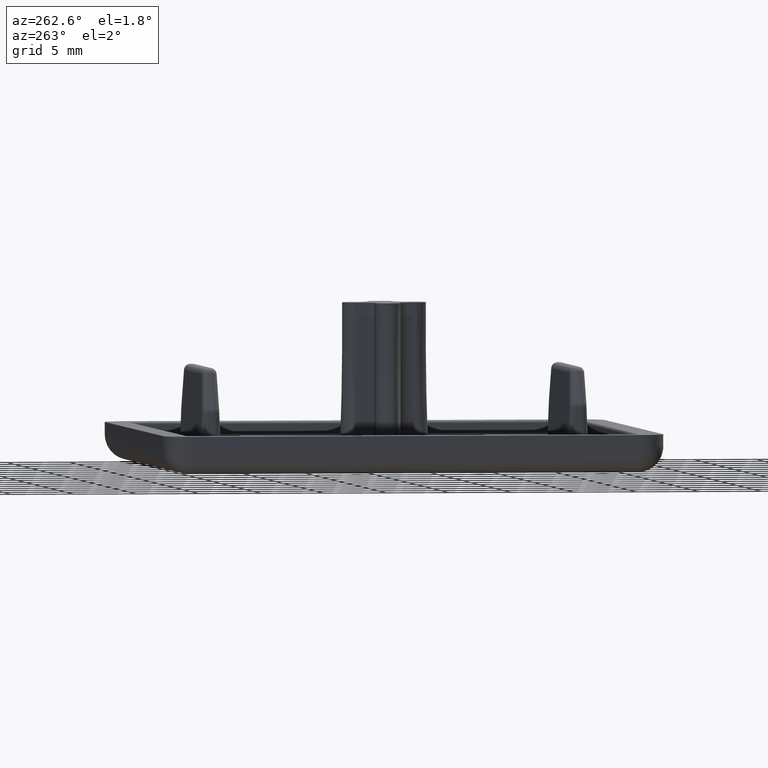
[diagram: clean part render]
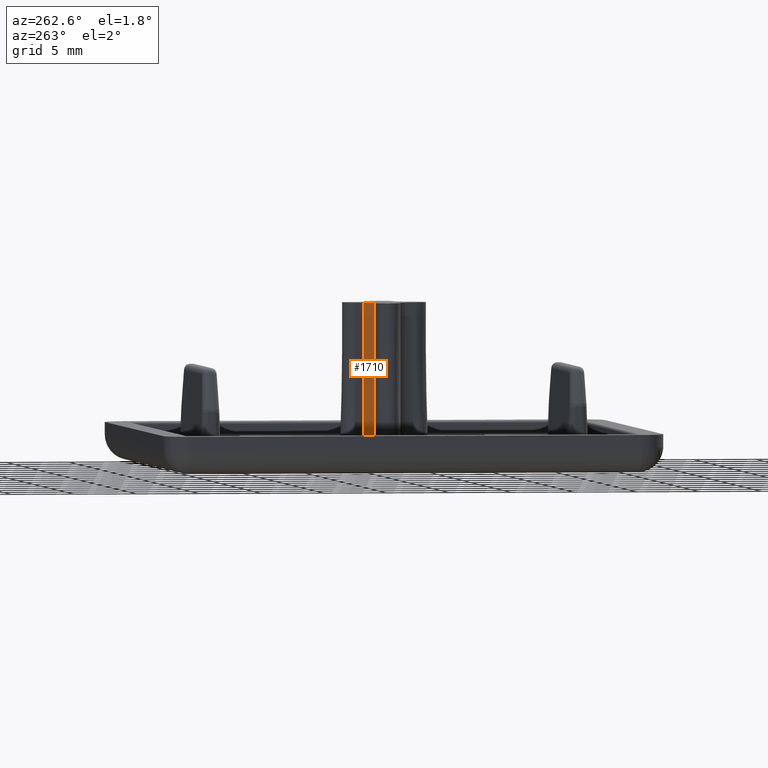
[diagram: same view with one face highlighted and labeled with its STEP entity id]
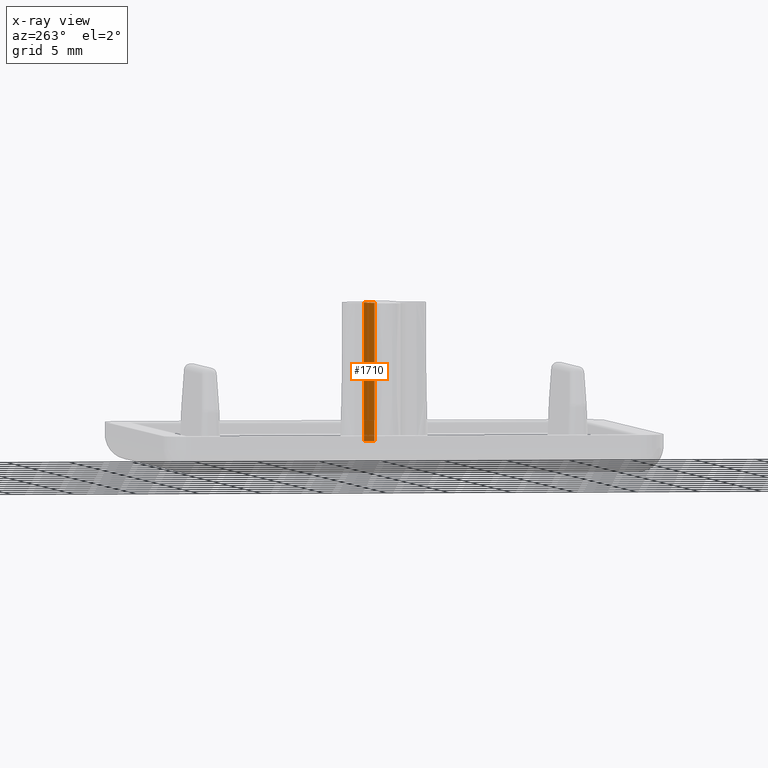
[diagram: x-ray of the same camera — body ghosted, the highlighted face saturated]
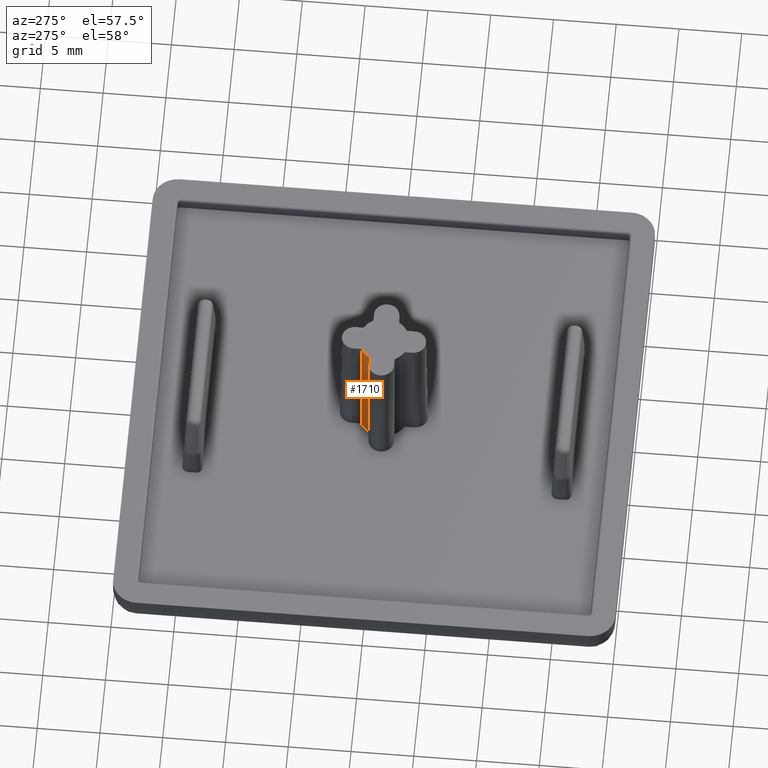
[diagram: same view with one face highlighted and labeled with its STEP entity id]
A machine part, auxiliary view. The second image highlights one B-rep face of the part: STEP entity #1710.
The next image is the same camera in x-ray: the body ghosted, the highlighted face saturated — about 4% of this face is hidden behind the body in this view.
A second angle (auxiliary view) of the same face is appended — the face is thin or edge-on in the first view.
In plain terms, the highlighted face is a freeform B-spline surface patch.
Its self-contained STEP definition (entity closure, byte-faithful):
#26=B_SPLINE_CURVE_WITH_KNOTS('',3,(#3028,#3029,#3030,#3031),
 .UNSPECIFIED.,.F.,.F.,(4,4),(-1.,0.),.UNSPECIFIED.);
#146=LINE('',#3010,#282);
#147=LINE('',#3032,#283);
#282=VECTOR('',#2294,11.0000000569532);
#283=VECTOR('',#2295,11.);
#462=FACE_OUTER_BOUND('',#572,.T.);
#572=EDGE_LOOP('',(#1409,#1410,#1411,#1412));
#672=CIRCLE('',#1875,2.);
#807=VERTEX_POINT('',#2880);
#808=VERTEX_POINT('',#2882);
#823=VERTEX_POINT('',#3008);
#824=VERTEX_POINT('',#3027);
#1011=EDGE_CURVE('',#807,#808,#672,.T.);
#1033=EDGE_CURVE('',#823,#807,#146,.T.);
#1034=EDGE_CURVE('',#824,#823,#26,.T.);
#1035=EDGE_CURVE('',#824,#808,#147,.T.);
#1409=ORIENTED_EDGE('',*,*,#1034,.F.);
#1410=ORIENTED_EDGE('',*,*,#1035,.T.);
#1411=ORIENTED_EDGE('',*,*,#1011,.F.);
#1412=ORIENTED_EDGE('',*,*,#1033,.F.);
#1640=B_SPLINE_SURFACE_WITH_KNOTS('',3,3,((#3011,#3012,#3013,#3014),(#3015,
#3016,#3017,#3018),(#3019,#3020,#3021,#3022),(#3023,#3024,#3025,#3026)),
 .UNSPECIFIED.,.F.,.F.,.F.,(4,4),(4,4),(0.,1.),(0.,1.),.UNSPECIFIED.);
#1710=ADVANCED_FACE('',(#462),#1640,.T.);
#1875=AXIS2_PLACEMENT_3D('',#2883,#2264,#2265);
#2264=DIRECTION('center_axis',(0.,0.,1.));
#2265=DIRECTION('ref_axis',(1.,0.,0.));
#2294=DIRECTION('',(-8.81411238609713E-5,-5.08554196290875E-5,0.999999994822434));
#2295=DIRECTION('',(2.52323414687536E-17,6.30808536718839E-17,1.));
#2880=CARTESIAN_POINT('',(-1.,1.73205080756888,11.5));
#2882=CARTESIAN_POINT('',(-1.73205080756888,1.,11.5));
#2883=CARTESIAN_POINT('Origin',(0.,0.,11.5));
#3008=CARTESIAN_POINT('',(-0.99903044763251,1.73261021718769,0.5));
#3010=CARTESIAN_POINT('',(-0.99903044763251,1.73261021718769,0.5));
#3011=CARTESIAN_POINT('Ctrl Pts',(-0.99903044763251,1.73261021718769,0.5));
#3012=CARTESIAN_POINT('Ctrl Pts',(-0.999353631755007,1.73242374731476,4.16666666666667));
#3013=CARTESIAN_POINT('Ctrl Pts',(-0.999676815877504,1.73223727744182,7.83333333333333));
#3014=CARTESIAN_POINT('Ctrl Pts',(-1.,1.73205080756888,11.5));
#3015=CARTESIAN_POINT('Ctrl Pts',(-1.30175121336458,1.55806013137102,0.5));
#3016=CARTESIAN_POINT('Ctrl Pts',(-1.30193371198746,1.55787888121415,4.16666666666666));
#3017=CARTESIAN_POINT('Ctrl Pts',(-1.30211739541615,1.55769913252631,7.83333333333334));
#3018=CARTESIAN_POINT('Ctrl Pts',(-1.30229989403904,1.55751788236944,11.5));
#3019=CARTESIAN_POINT('Ctrl Pts',(-1.55733132206138,1.30262302597128,0.5));
#3020=CARTESIAN_POINT('Ctrl Pts',(-1.55739306496109,1.30251485888069,4.16666666666667));
#3021=CARTESIAN_POINT('Ctrl Pts',(-1.55745613946973,1.30240806112963,7.83333333333333));
#3022=CARTESIAN_POINT('Ctrl Pts',(-1.55751788236944,1.30229989403904,11.5));
#3023=CARTESIAN_POINT('Ctrl Pts',(-1.73205080756888,1.,0.5));
#3024=CARTESIAN_POINT('Ctrl Pts',(-1.73205080756888,1.,4.16666666666667));
#3025=CARTESIAN_POINT('Ctrl Pts',(-1.73205080756888,1.,7.83333333333333));
#3026=CARTESIAN_POINT('Ctrl Pts',(-1.73205080756888,1.,11.5));
#3027=CARTESIAN_POINT('',(-1.73205080756888,1.,0.5));
#3028=CARTESIAN_POINT('Ctrl Pts',(-1.73205080756888,1.,0.5));
#3029=CARTESIAN_POINT('Ctrl Pts',(-1.55733132206138,1.30262302597128,0.5));
#3030=CARTESIAN_POINT('Ctrl Pts',(-1.30175121336458,1.55806013137102,0.5));
#3031=CARTESIAN_POINT('Ctrl Pts',(-0.99903044763251,1.73261021718769,0.5));
#3032=CARTESIAN_POINT('',(-1.73205080756888,1.,0.5));